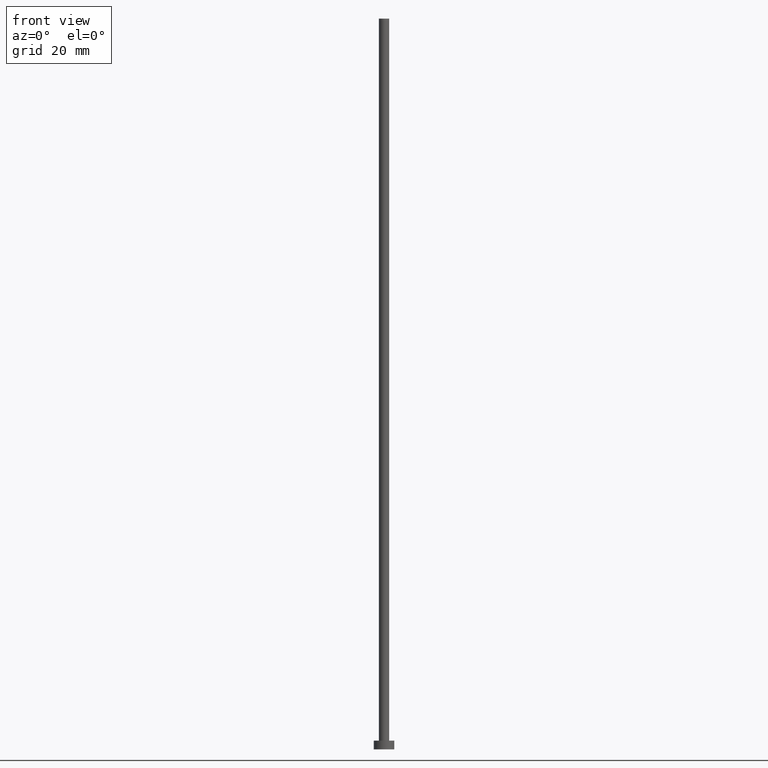
[diagram: clean part render]
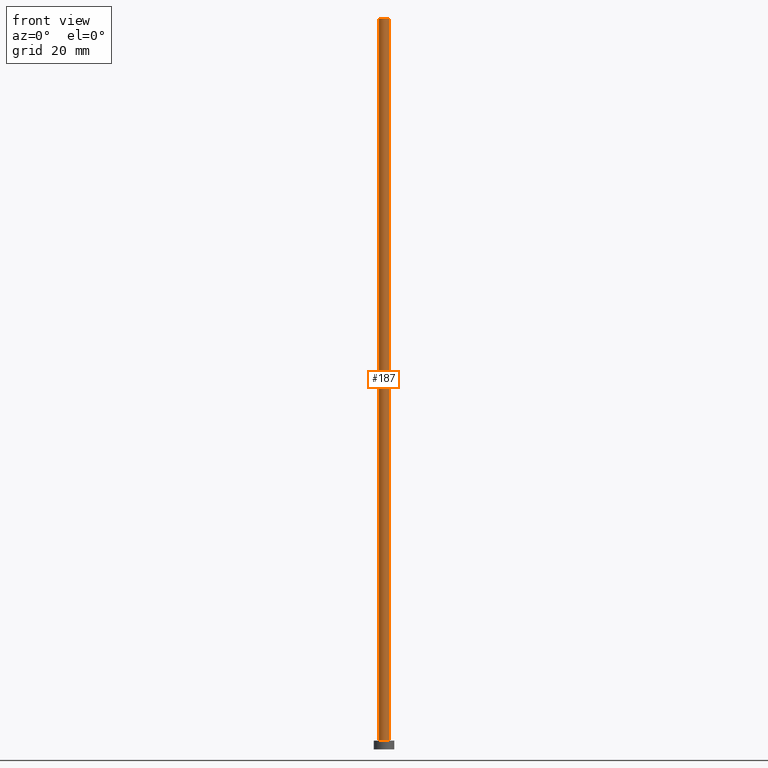
[diagram: same view with one face highlighted and labeled with its STEP entity id]
A machine part, front view. The second image highlights one B-rep face of the part: STEP entity #187.
In plain terms, the highlighted cylindrical surface (edge-blend (fillet) strip) has radius 1.75 mm, axis along (-0, -0, -1).
Its self-contained STEP definition (entity closure, byte-faithful):
#4 = EDGE_LOOP ( 'NONE', ( #5, #32, #86, #65 ) ) ;
#5 = ORIENTED_EDGE ( 'NONE', *, *, #219, .F. ) ;
#11 = DIRECTION ( 'NONE',  ( 0.000000000000000000, 0.000000000000000000, 1.000000000000000000 ) ) ;
#13 = DIRECTION ( 'NONE',  ( 1.000000000000000000, 0.000000000000000000, 0.000000000000000000 ) ) ;
#15 = DIRECTION ( 'NONE',  ( -1.000000000000000000, 0.000000000000000000, 0.000000000000000000 ) ) ;
#18 = VECTOR ( 'NONE', #68, 1000.000000000000000 ) ;
#32 = ORIENTED_EDGE ( 'NONE', *, *, #127, .F. ) ;
#33 = VERTEX_POINT ( 'NONE', #185 ) ;
#36 = DIRECTION ( 'NONE',  ( -0.000000000000000000, -0.000000000000000000, -1.000000000000000000 ) ) ;
#38 = CARTESIAN_POINT ( 'NONE',  ( 0.000000000000000000, 0.000000000000000000, 250.0000000000000000 ) ) ;
#39 = LINE ( 'NONE', #188, #205 ) ;
#49 = LINE ( 'NONE', #243, #18 ) ;
#52 = CARTESIAN_POINT ( 'NONE',  ( 0.000000000000000000, 0.000000000000000000, 3.000000000000000000 ) ) ;
#65 = ORIENTED_EDGE ( 'NONE', *, *, #239, .T. ) ;
#68 = DIRECTION ( 'NONE',  ( -0.000000000000000000, -0.000000000000000000, -1.000000000000000000 ) ) ;
#74 = CARTESIAN_POINT ( 'NONE',  ( -1.750000000000000000, 0.000000000000000000, 3.000000000000000000 ) ) ;
#86 = ORIENTED_EDGE ( 'NONE', *, *, #97, .T. ) ;
#91 = DIRECTION ( 'NONE',  ( 0.000000000000000000, 0.000000000000000000, 1.000000000000000000 ) ) ;
#93 = AXIS2_PLACEMENT_3D ( 'NONE', #38, #91, #13 ) ;
#96 = FACE_OUTER_BOUND ( 'NONE', #4, .T. ) ;
#97 = EDGE_CURVE ( 'NONE', #110, #149, #49, .T. ) ;
#110 = VERTEX_POINT ( 'NONE', #138 ) ;
#114 = DIRECTION ( 'NONE',  ( -0.000000000000000000, -0.000000000000000000, -1.000000000000000000 ) ) ;
#115 = CYLINDRICAL_SURFACE ( 'NONE', #145, 1.750000000000000000 ) ;
#127 = EDGE_CURVE ( 'NONE', #110, #133, #199, .T. ) ;
#133 = VERTEX_POINT ( 'NONE', #155 ) ;
#138 = CARTESIAN_POINT ( 'NONE',  ( -1.750000000000000000, 0.000000000000000000, 250.0000000000000000 ) ) ;
#145 = AXIS2_PLACEMENT_3D ( 'NONE', #227, #36, #15 ) ;
#149 = VERTEX_POINT ( 'NONE', #74 ) ;
#153 = CIRCLE ( 'NONE', #170, 1.750000000000000000 ) ;
#155 = CARTESIAN_POINT ( 'NONE',  ( 1.750000000000000000, 2.143131898507868297E-16, 250.0000000000000000 ) ) ;
#170 = AXIS2_PLACEMENT_3D ( 'NONE', #52, #11, #253 ) ;
#185 = CARTESIAN_POINT ( 'NONE',  ( 1.750000000000000000, 2.143131898507868297E-16, 3.000000000000000000 ) ) ;
#187 = ADVANCED_FACE ( 'NONE', ( #96 ), #115, .T. ) ;
#188 = CARTESIAN_POINT ( 'NONE',  ( 1.750000000000000000, 2.143131898507868297E-16, 250.0000000000000000 ) ) ;
#199 = CIRCLE ( 'NONE', #93, 1.750000000000000000 ) ;
#205 = VECTOR ( 'NONE', #114, 1000.000000000000000 ) ;
#219 = EDGE_CURVE ( 'NONE', #133, #33, #39, .T. ) ;
#227 = CARTESIAN_POINT ( 'NONE',  ( 0.000000000000000000, 0.000000000000000000, 250.0000000000000000 ) ) ;
#239 = EDGE_CURVE ( 'NONE', #149, #33, #153, .T. ) ;
#243 = CARTESIAN_POINT ( 'NONE',  ( -1.750000000000000000, 0.000000000000000000, 250.0000000000000000 ) ) ;
#253 = DIRECTION ( 'NONE',  ( 1.000000000000000000, 0.000000000000000000, 0.000000000000000000 ) ) ;